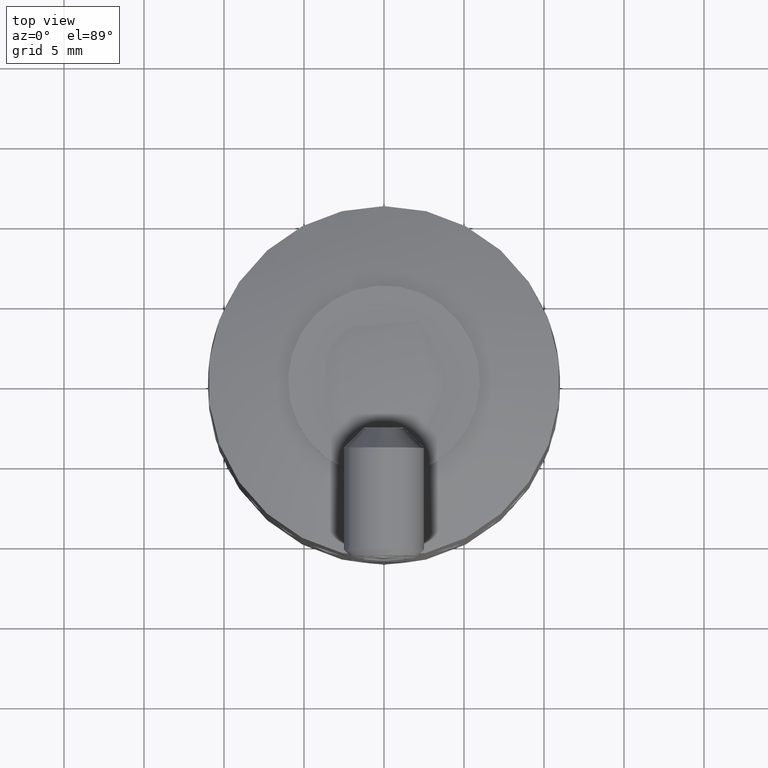
[diagram: clean part render]
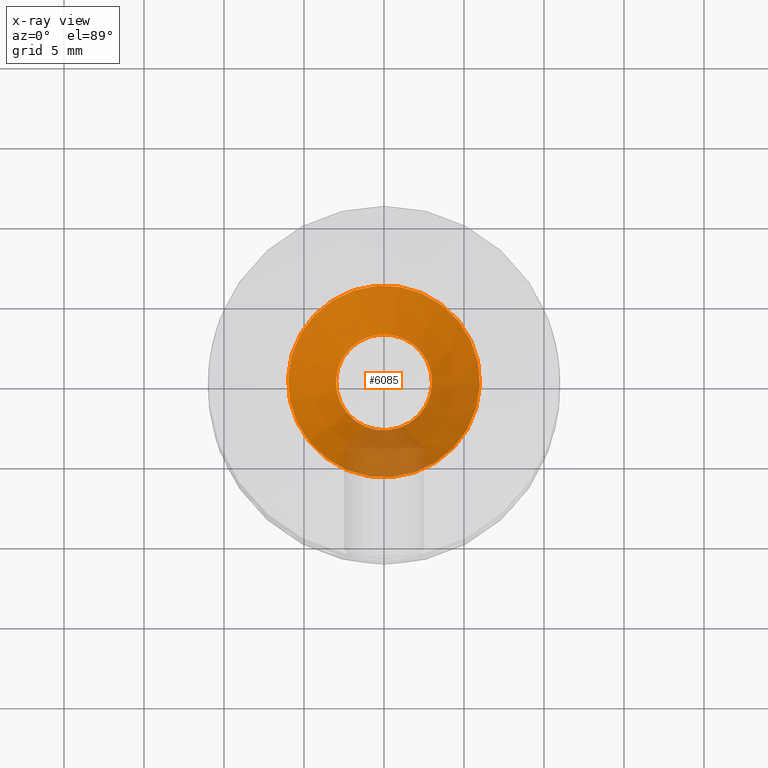
[diagram: x-ray — body ghosted, one internal face saturated and labeled with its STEP entity id]
A machine part, top view, then the same camera in x-ray: the body is ghosted and one INTERNAL B-rep face — a face not visible from any outside direction — is saturated and labeled: STEP entity #6085.
In plain terms, the highlighted conical surface has half-angle 45 deg.
Its self-contained STEP definition (entity closure, byte-faithful):
#14 = EDGE_CURVE ( 'NONE', #3064, #3064, #5272, .T. ) ;
#438 = CARTESIAN_POINT ( 'NONE',  ( 0.000000000000000000, 6.000000000000000000, 0.3000000000000043743 ) ) ;
#524 = AXIS2_PLACEMENT_3D ( 'NONE', #6005, #865, #1862 ) ;
#650 = AXIS2_PLACEMENT_3D ( 'NONE', #1263, #4092, #1752 ) ;
#832 = DIRECTION ( 'NONE',  ( -0.000000000000000000, 1.224646799147352961E-16, -1.000000000000000000 ) ) ;
#856 = DIRECTION ( 'NONE',  ( 0.000000000000000000, 1.000000000000000000, 1.445602896647341135E-16 ) ) ;
#865 = DIRECTION ( 'NONE',  ( -0.000000000000000000, 1.224646799147353207E-16, -1.000000000000000000 ) ) ;
#1263 = CARTESIAN_POINT ( 'NONE',  ( 0.000000000000000000, -3.673940397442103872E-17, 0.3000000000000035971 ) ) ;
#1577 = AXIS2_PLACEMENT_3D ( 'NONE', #3713, #832, #856 ) ;
#1752 = DIRECTION ( 'NONE',  ( 0.000000000000000000, 1.000000000000000000, 1.264902534566421922E-16 ) ) ;
#1862 = DIRECTION ( 'NONE',  ( 0.000000000000000000, 1.000000000000000000, 1.264902534566421922E-16 ) ) ;
#2025 = VERTEX_POINT ( 'NONE', #438 ) ;
#2096 = EDGE_LOOP ( 'NONE', ( #5935 ) ) ;
#2923 = FACE_BOUND ( 'NONE', #2096, .T. ) ;
#3064 = VERTEX_POINT ( 'NONE', #4673 ) ;
#3501 = EDGE_CURVE ( 'NONE', #2025, #2025, #4202, .T. ) ;
#3713 = CARTESIAN_POINT ( 'NONE',  ( 0.000000000000000000, -4.041334437186261072E-16, 3.299999999999997158 ) ) ;
#4092 = DIRECTION ( 'NONE',  ( -0.000000000000000000, 1.224646799147353207E-16, -1.000000000000000000 ) ) ;
#4202 = CIRCLE ( 'NONE', #650, 6.000000000000000000 ) ;
#4257 = FACE_OUTER_BOUND ( 'NONE', #5847, .T. ) ;
#4673 = CARTESIAN_POINT ( 'NONE',  ( 0.000000000000000000, 2.999999999999995559, 3.299999999999997158 ) ) ;
#5272 = CIRCLE ( 'NONE', #1577, 2.999999999999996003 ) ;
#5586 = CONICAL_SURFACE ( 'NONE', #524, 6.000000000000000000, 0.7853981633974504994 ) ;
#5670 = ORIENTED_EDGE ( 'NONE', *, *, #3501, .F. ) ;
#5847 = EDGE_LOOP ( 'NONE', ( #5670 ) ) ;
#5935 = ORIENTED_EDGE ( 'NONE', *, *, #14, .T. ) ;
#6005 = CARTESIAN_POINT ( 'NONE',  ( 0.000000000000000000, -3.673940397442103872E-17, 0.3000000000000035971 ) ) ;
#6085 = ADVANCED_FACE ( 'NONE', ( #4257, #2923 ), #5586, .T. ) ;